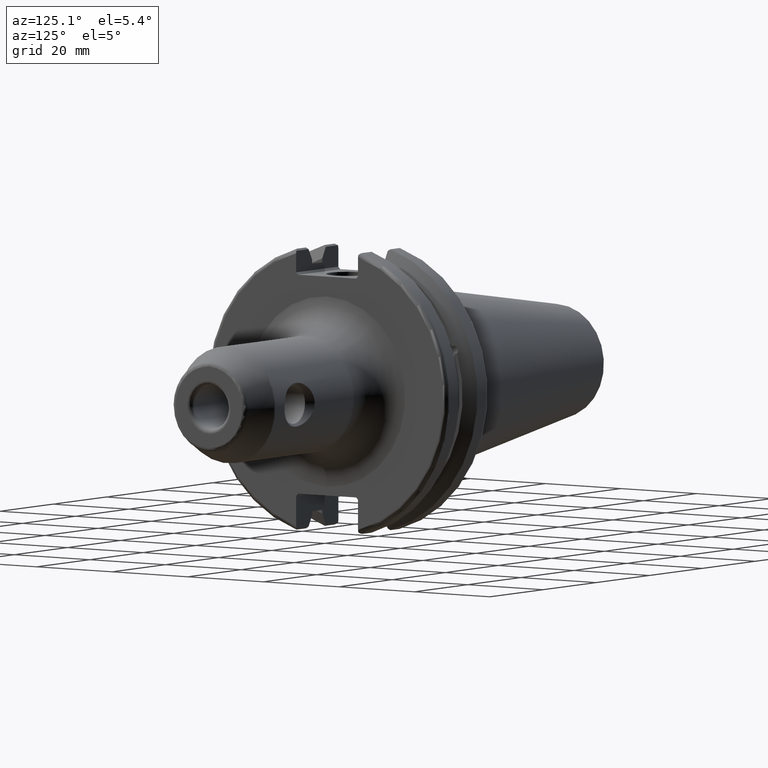
[diagram: clean part render]
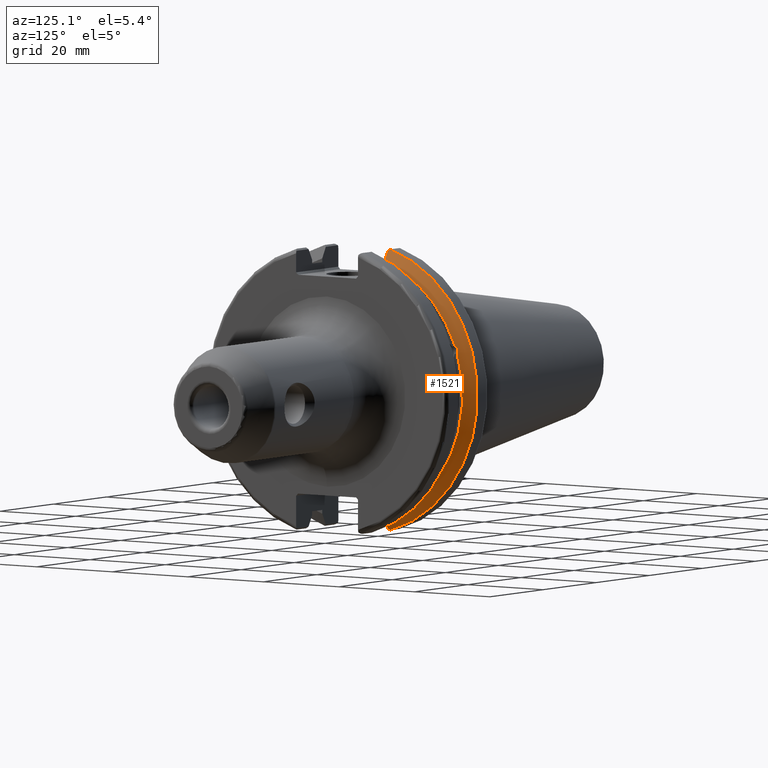
[diagram: same view with one face highlighted and labeled with its STEP entity id]
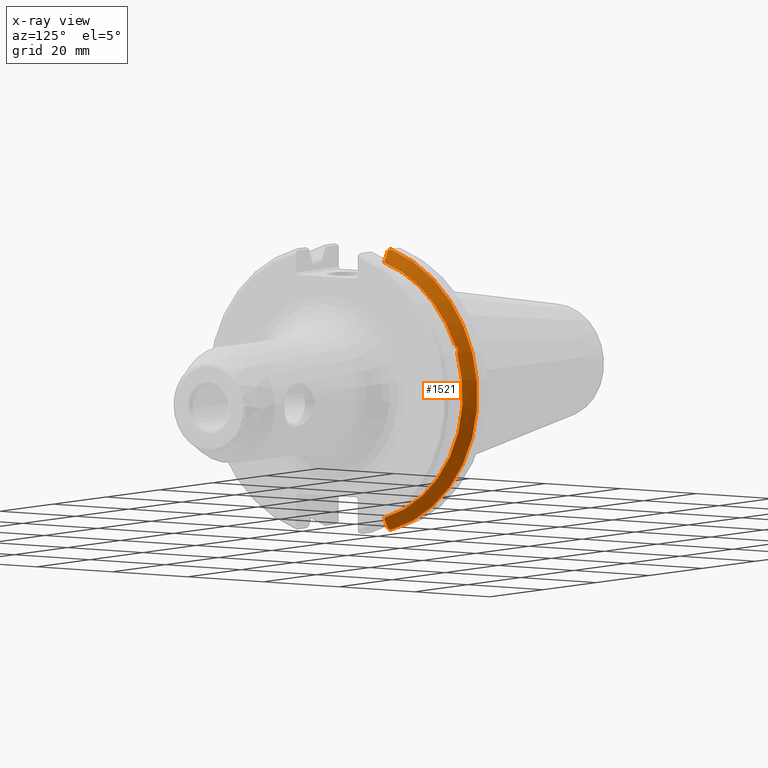
[diagram: x-ray of the same camera — body ghosted, the highlighted face saturated]
A machine part, auxiliary view. The second image highlights one B-rep face of the part: STEP entity #1521.
The next image is the same camera in x-ray: the body ghosted, the highlighted face saturated — about 0% of this face is hidden behind the body in this view.
In plain terms, the highlighted conical surface has half-angle 60 deg.
Its self-contained STEP definition (entity closure, byte-faithful):
#19=(
BOUNDED_CURVE()
B_SPLINE_CURVE(2,(#2734,#2735,#2736),.UNSPECIFIED.,.F.,.F.)
B_SPLINE_CURVE_WITH_KNOTS((3,3),(0.,0.276549142796136),.UNSPECIFIED.)
CURVE()
GEOMETRIC_REPRESENTATION_ITEM()
RATIONAL_B_SPLINE_CURVE((1.,1.00095203903316,1.00031614444813))
REPRESENTATION_ITEM('')
);
#20=(
BOUNDED_CURVE()
B_SPLINE_CURVE(2,(#2738,#2739,#2740),.UNSPECIFIED.,.F.,.F.)
B_SPLINE_CURVE_WITH_KNOTS((3,3),(0.,0.0639048713676127),.UNSPECIFIED.)
CURVE()
GEOMETRIC_REPRESENTATION_ITEM()
RATIONAL_B_SPLINE_CURVE((1.,1.00028444218281,1.00047644010571))
REPRESENTATION_ITEM('')
);
#21=(
BOUNDED_CURVE()
B_SPLINE_CURVE(2,(#2744,#2745,#2746),.UNSPECIFIED.,.F.,.F.)
B_SPLINE_CURVE_WITH_KNOTS((3,3),(0.329353533631191,0.393258405001024),
 .UNSPECIFIED.)
CURVE()
GEOMETRIC_REPRESENTATION_ITEM()
RATIONAL_B_SPLINE_CURVE((1.00047644010564,1.00028444218277,1.))
REPRESENTATION_ITEM('')
);
#22=(
BOUNDED_CURVE()
B_SPLINE_CURVE(2,(#2748,#2749,#2750),.UNSPECIFIED.,.F.,.F.)
B_SPLINE_CURVE_WITH_KNOTS((3,3),(0.0550586467391943,0.33160778953585),
 .UNSPECIFIED.)
CURVE()
GEOMETRIC_REPRESENTATION_ITEM()
RATIONAL_B_SPLINE_CURVE((1.00031614445155,1.00095203904346,1.))
REPRESENTATION_ITEM('')
);
#54=CONICAL_SURFACE('',#1684,30.3546886482472,1.0471975511966);
#77=B_SPLINE_CURVE_WITH_KNOTS('',3,(#2688,#2689,#2690,#2691,#2692,#2693,
#2694,#2695,#2696,#2697,#2698,#2699,#2700,#2701),.UNSPECIFIED.,.F.,.F.,
(4,2,2,2,2,2,4),(0.451995700189024,0.464547828547662,0.504528771685167,
0.544509714822672,0.584490657960177,0.624471601097682,0.637023729456319),
 .UNSPECIFIED.);
#389=FACE_OUTER_BOUND('',#483,.T.);
#483=EDGE_LOOP('',(#1201,#1202,#1203,#1204,#1205,#1206,#1207,#1208));
#582=CIRCLE('',#1685,28.9593772964944);
#583=CIRCLE('',#1686,31.75);
#584=CIRCLE('',#1687,28.9593772964944);
#701=VERTEX_POINT('',#2685);
#702=VERTEX_POINT('',#2687);
#706=VERTEX_POINT('',#2731);
#707=VERTEX_POINT('',#2733);
#708=VERTEX_POINT('',#2737);
#709=VERTEX_POINT('',#2741);
#710=VERTEX_POINT('',#2743);
#711=VERTEX_POINT('',#2747);
#886=EDGE_CURVE('',#702,#701,#77,.T.);
#891=EDGE_CURVE('',#706,#701,#582,.T.);
#892=EDGE_CURVE('',#706,#707,#19,.T.);
#893=EDGE_CURVE('',#708,#707,#20,.T.);
#894=EDGE_CURVE('',#708,#709,#583,.T.);
#895=EDGE_CURVE('',#710,#709,#21,.T.);
#896=EDGE_CURVE('',#710,#711,#22,.T.);
#897=EDGE_CURVE('',#702,#711,#584,.T.);
#1201=ORIENTED_EDGE('',*,*,#886,.T.);
#1202=ORIENTED_EDGE('',*,*,#891,.F.);
#1203=ORIENTED_EDGE('',*,*,#892,.T.);
#1204=ORIENTED_EDGE('',*,*,#893,.F.);
#1205=ORIENTED_EDGE('',*,*,#894,.T.);
#1206=ORIENTED_EDGE('',*,*,#895,.F.);
#1207=ORIENTED_EDGE('',*,*,#896,.T.);
#1208=ORIENTED_EDGE('',*,*,#897,.F.);
#1521=ADVANCED_FACE('',(#389),#54,.T.);
#1684=AXIS2_PLACEMENT_3D('',#2730,#1989,#1990);
#1685=AXIS2_PLACEMENT_3D('',#2732,#1991,#1992);
#1686=AXIS2_PLACEMENT_3D('',#2742,#1993,#1994);
#1687=AXIS2_PLACEMENT_3D('',#2751,#1995,#1996);
#1989=DIRECTION('center_axis',(-1.,0.,0.));
#1990=DIRECTION('ref_axis',(0.,1.,0.));
#1991=DIRECTION('center_axis',(1.,0.,0.));
#1992=DIRECTION('ref_axis',(0.,0.,-1.));
#1993=DIRECTION('center_axis',(1.,0.,0.));
#1994=DIRECTION('ref_axis',(0.,0.,-1.));
#1995=DIRECTION('center_axis',(1.,0.,0.));
#1996=DIRECTION('ref_axis',(0.,0.,-1.));
#2685=CARTESIAN_POINT('',(9.2191,27.4956274489925,9.09043478536247));
#2687=CARTESIAN_POINT('',(9.2191,26.9060914640648,10.7101715919071));
#2688=CARTESIAN_POINT('Ctrl Pts',(9.2191,26.9060914640648,10.7101715919071));
#2689=CARTESIAN_POINT('Ctrl Pts',(9.20497959280038,26.9406927482839,10.6893765730703));
#2690=CARTESIAN_POINT('Ctrl Pts',(9.19150701821434,26.9744191989197,10.6676007180674));
#2691=CARTESIAN_POINT('Ctrl Pts',(9.13811855884095,27.1113422433188,10.5723885976054));
#2692=CARTESIAN_POINT('Ctrl Pts',(9.09998029158246,27.2180531796526,10.4801333026531));
#2693=CARTESIAN_POINT('Ctrl Pts',(9.04778935539424,27.3968610665578,10.2639559818059));
#2694=CARTESIAN_POINT('Ctrl Pts',(9.0341,27.4684373304961,10.139516340139));
#2695=CARTESIAN_POINT('Ctrl Pts',(9.0341,27.559599249844,9.88905102521651));
#2696=CARTESIAN_POINT('Ctrl Pts',(9.04778935539424,27.5847569104122,9.74771639360671));
#2697=CARTESIAN_POINT('Ctrl Pts',(9.09998029158246,27.5867382255984,9.46717946402648));
#2698=CARTESIAN_POINT('Ctrl Pts',(9.13811855884095,27.5642934663232,9.32791534028656));
#2699=CARTESIAN_POINT('Ctrl Pts',(9.19150701821433,27.5206055003512,9.16696618806878));
#2700=CARTESIAN_POINT('Ctrl Pts',(9.20497959280038,27.5087667900418,9.12860597076219));
#2701=CARTESIAN_POINT('Ctrl Pts',(9.21909999999999,27.4956274489925,9.09043478536247));
#2730=CARTESIAN_POINT('Origin',(8.41351661546218,0.,0.));
#2731=CARTESIAN_POINT('',(9.2191,8.19,-27.7771386827498));
#2732=CARTESIAN_POINT('Origin',(9.2191,0.,0.));
#2733=CARTESIAN_POINT('',(7.88668530351257,8.19,-30.1755016258903));
#2734=CARTESIAN_POINT('Ctrl Pts',(9.2191,8.19,-27.7771386827498));
#2735=CARTESIAN_POINT('Ctrl Pts',(8.58046356152393,8.19,-28.9303689539705));
#2736=CARTESIAN_POINT('Ctrl Pts',(7.88668530351257,8.19,-30.1755016258903));
#2737=CARTESIAN_POINT('',(7.60793323092436,8.67204822802685,-30.5427254764662));
#2738=CARTESIAN_POINT('Ctrl Pts',(7.60793323092436,8.67204822802686,-30.5427254764662));
#2739=CARTESIAN_POINT('Ctrl Pts',(7.74899148121627,8.42917748262647,-30.357706789263));
#2740=CARTESIAN_POINT('Ctrl Pts',(7.88668530351257,8.19,-30.1755016258903));
#2741=CARTESIAN_POINT('',(7.60793323092436,8.67204822802685,30.5427254764662));
#2742=CARTESIAN_POINT('Origin',(7.60793323092436,0.,0.));
#2743=CARTESIAN_POINT('',(7.88668530351256,8.19,30.1755016258903));
#2744=CARTESIAN_POINT('Ctrl Pts',(7.88668530351256,8.19,30.1755016258903));
#2745=CARTESIAN_POINT('Ctrl Pts',(7.74899148121158,8.42917748263469,30.3577067892692));
#2746=CARTESIAN_POINT('Ctrl Pts',(7.60793323092436,8.67204822802686,30.5427254764662));
#2747=CARTESIAN_POINT('',(9.2191,8.19,27.7771386827498));
#2748=CARTESIAN_POINT('Ctrl Pts',(7.88668530351256,8.19,30.1755016258903));
#2749=CARTESIAN_POINT('Ctrl Pts',(8.58046356152345,8.19,28.9303689539713));
#2750=CARTESIAN_POINT('Ctrl Pts',(9.2191,8.19,27.7771386827498));
#2751=CARTESIAN_POINT('Origin',(9.2191,0.,0.));